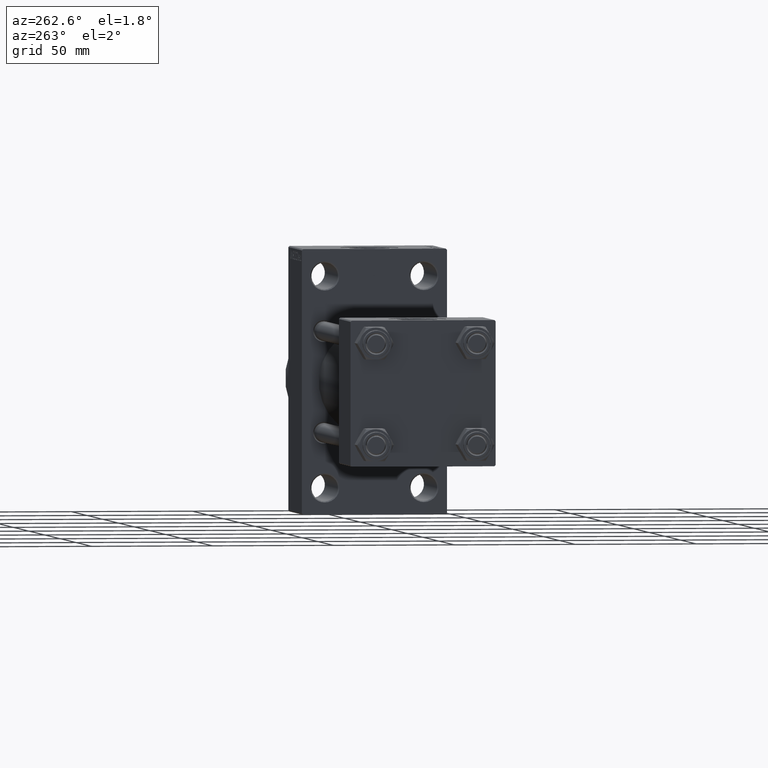
[diagram: clean part render]
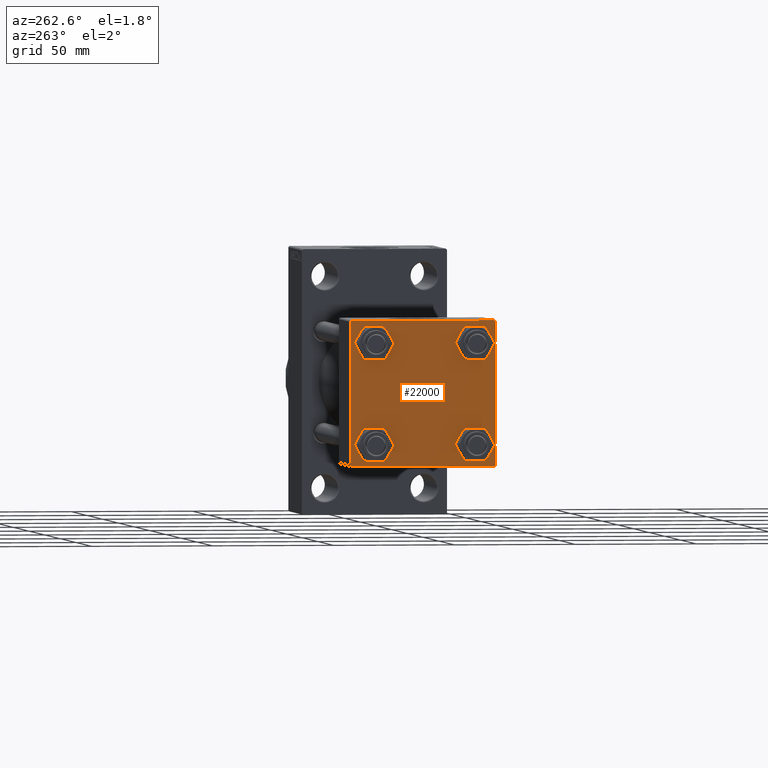
[diagram: same view with one face highlighted and labeled with its STEP entity id]
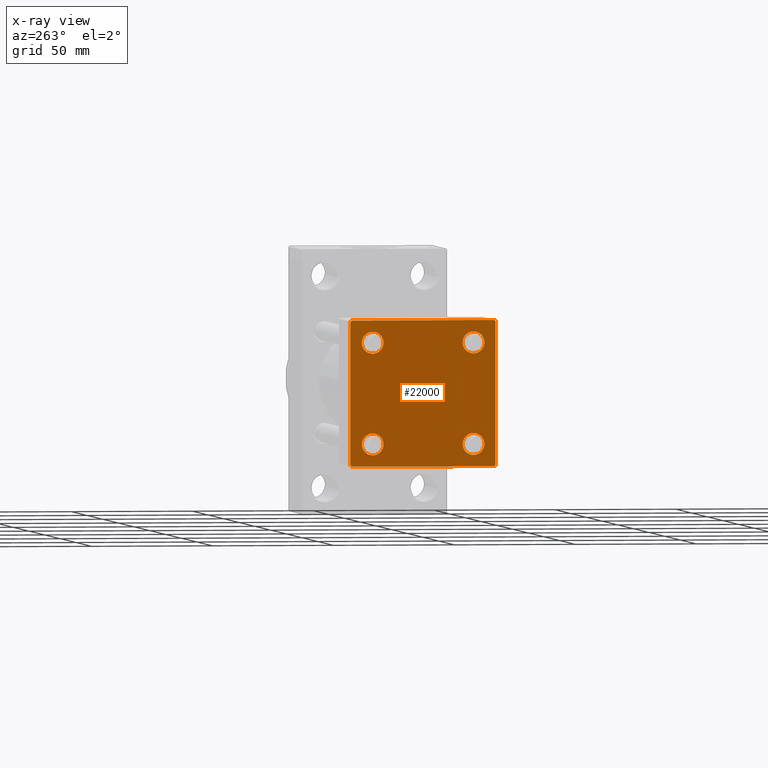
[diagram: x-ray of the same camera — body ghosted, the highlighted face saturated]
A machine part, auxiliary view. The second image highlights one B-rep face of the part: STEP entity #22000.
The next image is the same camera in x-ray: the body ghosted, the highlighted face saturated — about 0% of this face is hidden behind the body in this view.
In plain terms, the highlighted planar face has unit normal (-1, 0, 0).
Its self-contained STEP definition (entity closure, byte-faithful):
#147 = CARTESIAN_POINT ( 'NONE',  ( 0.000000000000000000, -30.00000000000000000, 29.99999999999999289 ) ) ;
#221 = VECTOR ( 'NONE', #29656, 1000.000000000000114 ) ;
#624 = AXIS2_PLACEMENT_3D ( 'NONE', #5308, #34472, #16598 ) ;
#679 = ORIENTED_EDGE ( 'NONE', *, *, #24285, .T. ) ;
#978 = EDGE_CURVE ( 'NONE', #24988, #12736, #8713, .T. ) ;
#2106 = VERTEX_POINT ( 'NONE', #31888 ) ;
#2835 = VERTEX_POINT ( 'NONE', #27486 ) ;
#3060 = LINE ( 'NONE', #39947, #19766 ) ;
#3061 = CARTESIAN_POINT ( 'NONE',  ( 0.000000000000000000, 20.84999999999999787, 25.35000000000001918 ) ) ;
#3337 = DIRECTION ( 'NONE',  ( 1.000000000000000000, -0.000000000000000000, 0.000000000000000000 ) ) ;
#3540 = DIRECTION ( 'NONE',  ( 0.000000000000000000, 0.000000000000000000, 1.000000000000000000 ) ) ;
#3651 = AXIS2_PLACEMENT_3D ( 'NONE', #18966, #23054, #16066 ) ;
#4147 = CARTESIAN_POINT ( 'NONE',  ( 0.000000000000000000, 29.74999999999957723, -29.75000000000040501 ) ) ;
#4417 = ORIENTED_EDGE ( 'NONE', *, *, #978, .T. ) ;
#4473 = CARTESIAN_POINT ( 'NONE',  ( 0.000000000000000000, 20.84999999999999787, 16.34999999999998366 ) ) ;
#4612 = EDGE_LOOP ( 'NONE', ( #34282, #22975 ) ) ;
#4677 = CIRCLE ( 'NONE', #39310, 4.500000000000017764 ) ;
#5308 = CARTESIAN_POINT ( 'NONE',  ( 0.000000000000000000, -20.84999999999999076, 20.85000000000000497 ) ) ;
#5399 = EDGE_LOOP ( 'NONE', ( #4417, #14088, #15543, #34349, #8568, #42328, #44248, #31603 ) ) ;
#6614 = ORIENTED_EDGE ( 'NONE', *, *, #22652, .T. ) ;
#6648 = VERTEX_POINT ( 'NONE', #12902 ) ;
#6881 = DIRECTION ( 'NONE',  ( -0.000000000000000000, 0.000000000000000000, 1.000000000000000000 ) ) ;
#7401 = CARTESIAN_POINT ( 'NONE',  ( 0.000000000000000000, -20.84999999999999076, 20.85000000000000497 ) ) ;
#7671 = VECTOR ( 'NONE', #18199, 1000.000000000000000 ) ;
#7711 = CIRCLE ( 'NONE', #24589, 4.500000000000017764 ) ;
#7793 = VERTEX_POINT ( 'NONE', #21576 ) ;
#8191 = VERTEX_POINT ( 'NONE', #32642 ) ;
#8568 = ORIENTED_EDGE ( 'NONE', *, *, #35738, .F. ) ;
#8713 = LINE ( 'NONE', #34258, #17059 ) ;
#9040 = EDGE_LOOP ( 'NONE', ( #47164, #32844 ) ) ;
#9899 = CIRCLE ( 'NONE', #19892, 4.500000000000017764 ) ;
#10759 = LINE ( 'NONE', #147, #7671 ) ;
#11343 = CARTESIAN_POINT ( 'NONE',  ( -0.000000000000000000, -29.74999999999999645, 29.74999999999999645 ) ) ;
#11686 = CARTESIAN_POINT ( 'NONE',  ( 0.000000000000000000, -29.75000000000001066, -29.75000000000001066 ) ) ;
#12105 = CARTESIAN_POINT ( 'NONE',  ( 0.000000000000000000, -29.50000000000000000, -30.00000000000000711 ) ) ;
#12198 = CIRCLE ( 'NONE', #16775, 4.500000000000017764 ) ;
#12593 = CARTESIAN_POINT ( 'NONE',  ( 0.000000000000000000, 20.84999999999999787, 20.85000000000000142 ) ) ;
#12736 = VERTEX_POINT ( 'NONE', #28955 ) ;
#12902 = CARTESIAN_POINT ( 'NONE',  ( 0.000000000000000000, 20.84999999999999787, -25.35000000000001918 ) ) ;
#13862 = AXIS2_PLACEMENT_3D ( 'NONE', #39983, #3337, #47705 ) ;
#13881 = DIRECTION ( 'NONE',  ( 0.000000000000000000, 0.7071067811865474617, -0.7071067811865474617 ) ) ;
#14088 = ORIENTED_EDGE ( 'NONE', *, *, #17045, .T. ) ;
#14113 = EDGE_CURVE ( 'NONE', #20698, #22693, #26373, .T. ) ;
#15543 = ORIENTED_EDGE ( 'NONE', *, *, #14113, .T. ) ;
#16066 = DIRECTION ( 'NONE',  ( 0.000000000000000000, 0.000000000000000000, 1.000000000000000000 ) ) ;
#16240 = EDGE_CURVE ( 'NONE', #29519, #47709, #41409, .T. ) ;
#16249 = EDGE_CURVE ( 'NONE', #7793, #24988, #3060, .T. ) ;
#16598 = DIRECTION ( 'NONE',  ( 0.000000000000000000, 0.000000000000000000, 1.000000000000000000 ) ) ;
#16775 = AXIS2_PLACEMENT_3D ( 'NONE', #17277, #21606, #28146 ) ;
#17045 = EDGE_CURVE ( 'NONE', #12736, #20698, #22432, .T. ) ;
#17059 = VECTOR ( 'NONE', #26544, 1000.000000000000000 ) ;
#17277 = CARTESIAN_POINT ( 'NONE',  ( 0.000000000000000000, -20.84999999999999076, -20.85000000000000497 ) ) ;
#17645 = VECTOR ( 'NONE', #26679, 1000.000000000000000 ) ;
#18199 = DIRECTION ( 'NONE',  ( 0.000000000000000000, 0.000000000000000000, -1.000000000000000000 ) ) ;
#18581 = EDGE_CURVE ( 'NONE', #2835, #21617, #12198, .T. ) ;
#18966 = CARTESIAN_POINT ( 'NONE',  ( 0.000000000000000000, 20.84999999999999787, -20.85000000000000142 ) ) ;
#19095 = CARTESIAN_POINT ( 'NONE',  ( 0.000000000000000000, -30.00000000000000000, -29.50000000000001776 ) ) ;
#19766 = VECTOR ( 'NONE', #13881, 1000.000000000000114 ) ;
#19892 = AXIS2_PLACEMENT_3D ( 'NONE', #34767, #38151, #45410 ) ;
#20698 = VERTEX_POINT ( 'NONE', #40612 ) ;
#21307 = VECTOR ( 'NONE', #30167, 999.9999999999998863 ) ;
#21576 = CARTESIAN_POINT ( 'NONE',  ( 0.000000000000000000, 29.49999999999999289, 30.00000000000000000 ) ) ;
#21606 = DIRECTION ( 'NONE',  ( 1.000000000000000000, -0.000000000000000000, 0.000000000000000000 ) ) ;
#21617 = VERTEX_POINT ( 'NONE', #44485 ) ;
#22000 = ADVANCED_FACE ( 'NONE', ( #43553, #24928, #29284, #31952, #43315 ), #47634, .T. ) ;
#22432 = LINE ( 'NONE', #4147, #21307 ) ;
#22468 = ORIENTED_EDGE ( 'NONE', *, *, #41006, .T. ) ;
#22636 = LINE ( 'NONE', #11343, #221 ) ;
#22652 = EDGE_CURVE ( 'NONE', #39664, #36324, #7711, .T. ) ;
#22693 = VERTEX_POINT ( 'NONE', #12105 ) ;
#22975 = ORIENTED_EDGE ( 'NONE', *, *, #39449, .T. ) ;
#23054 = DIRECTION ( 'NONE',  ( 1.000000000000000000, -0.000000000000000000, 0.000000000000000000 ) ) ;
#23355 = VERTEX_POINT ( 'NONE', #19095 ) ;
#23449 = DIRECTION ( 'NONE',  ( 0.000000000000000000, -0.7071067811865474617, 0.7071067811865474617 ) ) ;
#23948 = EDGE_CURVE ( 'NONE', #8191, #6648, #35418, .T. ) ;
#24285 = EDGE_CURVE ( 'NONE', #36324, #39664, #4677, .T. ) ;
#24391 = CIRCLE ( 'NONE', #3651, 4.500000000000017764 ) ;
#24464 = CIRCLE ( 'NONE', #624, 4.500000000000017764 ) ;
#24589 = AXIS2_PLACEMENT_3D ( 'NONE', #27271, #27501, #34042 ) ;
#24928 = FACE_BOUND ( 'NONE', #9040, .T. ) ;
#24988 = VERTEX_POINT ( 'NONE', #38195 ) ;
#25169 = DIRECTION ( 'NONE',  ( -1.000000000000000000, 0.000000000000000000, -0.000000000000000000 ) ) ;
#25465 = CARTESIAN_POINT ( 'NONE',  ( 0.000000000000000000, 29.99999999999999289, 30.00000000000000000 ) ) ;
#26373 = LINE ( 'NONE', #40633, #42850 ) ;
#26432 = VERTEX_POINT ( 'NONE', #39315 ) ;
#26544 = DIRECTION ( 'NONE',  ( 0.000000000000000000, 0.000000000000000000, -1.000000000000000000 ) ) ;
#26679 = DIRECTION ( 'NONE',  ( 0.000000000000000000, -1.000000000000000000, -1.156482317317871725E-16 ) ) ;
#27271 = CARTESIAN_POINT ( 'NONE',  ( 0.000000000000000000, 20.84999999999999787, 20.85000000000000142 ) ) ;
#27288 = DIRECTION ( 'NONE',  ( 1.000000000000000000, -0.000000000000000000, 0.000000000000000000 ) ) ;
#27486 = CARTESIAN_POINT ( 'NONE',  ( 0.000000000000000000, -20.84999999999999076, -25.35000000000002274 ) ) ;
#27501 = DIRECTION ( 'NONE',  ( 1.000000000000000000, -0.000000000000000000, 0.000000000000000000 ) ) ;
#28146 = DIRECTION ( 'NONE',  ( 0.000000000000000000, 0.000000000000000000, 1.000000000000000000 ) ) ;
#28507 = EDGE_LOOP ( 'NONE', ( #32150, #22468 ) ) ;
#28955 = CARTESIAN_POINT ( 'NONE',  ( 0.000000000000000000, 29.99999999999999289, -29.50000000000000000 ) ) ;
#29284 = FACE_BOUND ( 'NONE', #4612, .T. ) ;
#29519 = VERTEX_POINT ( 'NONE', #32121 ) ;
#29656 = DIRECTION ( 'NONE',  ( -0.000000000000000000, 0.7071067811865474617, 0.7071067811865474617 ) ) ;
#29994 = LINE ( 'NONE', #11686, #41360 ) ;
#30167 = DIRECTION ( 'NONE',  ( -0.000000000000000000, -0.7071067811865574537, -0.7071067811865376918 ) ) ;
#31146 = DIRECTION ( 'NONE',  ( 0.000000000000000000, 0.000000000000000000, 1.000000000000000000 ) ) ;
#31603 = ORIENTED_EDGE ( 'NONE', *, *, #16249, .T. ) ;
#31888 = CARTESIAN_POINT ( 'NONE',  ( 0.000000000000000000, -29.49999999999998579, 29.99999999999999289 ) ) ;
#31952 = FACE_BOUND ( 'NONE', #34403, .T. ) ;
#32121 = CARTESIAN_POINT ( 'NONE',  ( 0.000000000000000000, -20.84999999999999076, 25.35000000000002274 ) ) ;
#32150 = ORIENTED_EDGE ( 'NONE', *, *, #16240, .T. ) ;
#32642 = CARTESIAN_POINT ( 'NONE',  ( 0.000000000000000000, 20.84999999999999787, -16.34999999999998366 ) ) ;
#32844 = ORIENTED_EDGE ( 'NONE', *, *, #18581, .T. ) ;
#34042 = DIRECTION ( 'NONE',  ( 0.000000000000000000, 0.000000000000000000, 1.000000000000000000 ) ) ;
#34258 = CARTESIAN_POINT ( 'NONE',  ( 0.000000000000000000, 29.99999999999999289, 30.00000000000000000 ) ) ;
#34282 = ORIENTED_EDGE ( 'NONE', *, *, #23948, .T. ) ;
#34349 = ORIENTED_EDGE ( 'NONE', *, *, #37477, .T. ) ;
#34403 = EDGE_LOOP ( 'NONE', ( #679, #6614 ) ) ;
#34472 = DIRECTION ( 'NONE',  ( 1.000000000000000000, -0.000000000000000000, 0.000000000000000000 ) ) ;
#34550 = EDGE_CURVE ( 'NONE', #26432, #2106, #22636, .T. ) ;
#34767 = CARTESIAN_POINT ( 'NONE',  ( 0.000000000000000000, -20.84999999999999076, -20.85000000000000497 ) ) ;
#35418 = CIRCLE ( 'NONE', #13862, 4.500000000000017764 ) ;
#35738 = EDGE_CURVE ( 'NONE', #26432, #23355, #10759, .T. ) ;
#36279 = CARTESIAN_POINT ( 'NONE',  ( 0.000000000000000000, 0.000000000000000000, 0.000000000000000000 ) ) ;
#36324 = VERTEX_POINT ( 'NONE', #3061 ) ;
#37477 = EDGE_CURVE ( 'NONE', #22693, #23355, #29994, .T. ) ;
#37592 = AXIS2_PLACEMENT_3D ( 'NONE', #36279, #25169, #6881 ) ;
#38151 = DIRECTION ( 'NONE',  ( 1.000000000000000000, -0.000000000000000000, 0.000000000000000000 ) ) ;
#38195 = CARTESIAN_POINT ( 'NONE',  ( 0.000000000000000000, 29.99999999999999289, 29.50000000000000000 ) ) ;
#39310 = AXIS2_PLACEMENT_3D ( 'NONE', #12593, #27288, #31146 ) ;
#39315 = CARTESIAN_POINT ( 'NONE',  ( 0.000000000000000000, -30.00000000000000000, 29.49999999999999289 ) ) ;
#39449 = EDGE_CURVE ( 'NONE', #6648, #8191, #24391, .T. ) ;
#39664 = VERTEX_POINT ( 'NONE', #4473 ) ;
#39947 = CARTESIAN_POINT ( 'NONE',  ( 0.000000000000000000, 29.74999999999999645, 29.74999999999999645 ) ) ;
#39983 = CARTESIAN_POINT ( 'NONE',  ( 0.000000000000000000, 20.84999999999999787, -20.85000000000000142 ) ) ;
#40612 = CARTESIAN_POINT ( 'NONE',  ( 0.000000000000000000, 29.49999999999997868, -30.00000000000000000 ) ) ;
#40633 = CARTESIAN_POINT ( 'NONE',  ( 0.000000000000000000, 29.99999999999999289, -30.00000000000000000 ) ) ;
#41006 = EDGE_CURVE ( 'NONE', #47709, #29519, #24464, .T. ) ;
#41115 = DIRECTION ( 'NONE',  ( 0.000000000000000000, -1.000000000000000000, -1.156482317317871725E-16 ) ) ;
#41360 = VECTOR ( 'NONE', #23449, 1000.000000000000114 ) ;
#41409 = CIRCLE ( 'NONE', #43697, 4.500000000000017764 ) ;
#41831 = EDGE_CURVE ( 'NONE', #21617, #2835, #9899, .T. ) ;
#42328 = ORIENTED_EDGE ( 'NONE', *, *, #34550, .T. ) ;
#42850 = VECTOR ( 'NONE', #41115, 1000.000000000000000 ) ;
#43315 = FACE_OUTER_BOUND ( 'NONE', #5399, .T. ) ;
#43553 = FACE_BOUND ( 'NONE', #28507, .T. ) ;
#43697 = AXIS2_PLACEMENT_3D ( 'NONE', #7401, #46956, #3540 ) ;
#44248 = ORIENTED_EDGE ( 'NONE', *, *, #44592, .F. ) ;
#44485 = CARTESIAN_POINT ( 'NONE',  ( 0.000000000000000000, -20.84999999999999076, -16.34999999999998721 ) ) ;
#44592 = EDGE_CURVE ( 'NONE', #7793, #2106, #45052, .T. ) ;
#45052 = LINE ( 'NONE', #25465, #17645 ) ;
#45410 = DIRECTION ( 'NONE',  ( 0.000000000000000000, 0.000000000000000000, 1.000000000000000000 ) ) ;
#45708 = CARTESIAN_POINT ( 'NONE',  ( 0.000000000000000000, -20.84999999999999076, 16.34999999999998721 ) ) ;
#46956 = DIRECTION ( 'NONE',  ( 1.000000000000000000, -0.000000000000000000, 0.000000000000000000 ) ) ;
#47164 = ORIENTED_EDGE ( 'NONE', *, *, #41831, .T. ) ;
#47634 = PLANE ( 'NONE',  #37592 ) ;
#47705 = DIRECTION ( 'NONE',  ( 0.000000000000000000, 0.000000000000000000, 1.000000000000000000 ) ) ;
#47709 = VERTEX_POINT ( 'NONE', #45708 ) ;